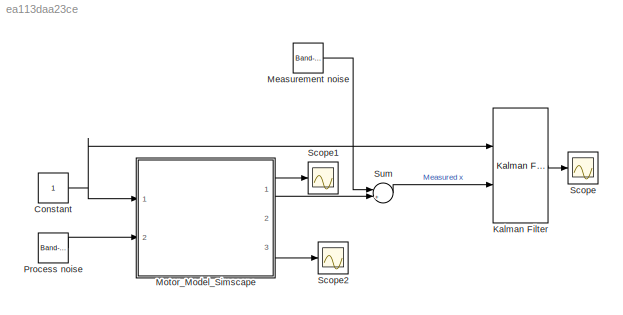
MODEL slx_ea113daa23ce
KIND model
CONFIG AbsTol = auto
CONFIG EnableMultiTasking = off
CONFIG FixedStep = auto
CONFIG MaxStep = auto
CONFIG MinStep = auto
CONFIG RelTol = 1e-3
CONFIG SampleTimeConstraint = Unconstrained
CONFIG Solver = ode15s
CONFIG SolverName = ode15s
CONFIG StartTime = 0.0
CONFIG StopTime = 10.0
BLOCK [Constant] Constant
BLOCK [Reference] Kalman Filter  REF=ctrlSharedLib/Kalman Filter
  Ports = [2, 1]
  SourceBlock = ctrlSharedLib/Kalman Filter
  SourceProductBaseCode = CT
  SourceProductName = Control System Toolbox
  SourceType = ctrlKalmanFilter
BLOCK [Reference] Measurement noise  REF=simulink/Sources/Band-Limited
White Noise
  Ports = [0, 1]
  SourceBlock = simulink/Sources/Band-Limited\nWhite Noise
  SourceProductBaseCode = SL
  SourceProductName = Simulink
  SourceType = Band-Limited White Noise.
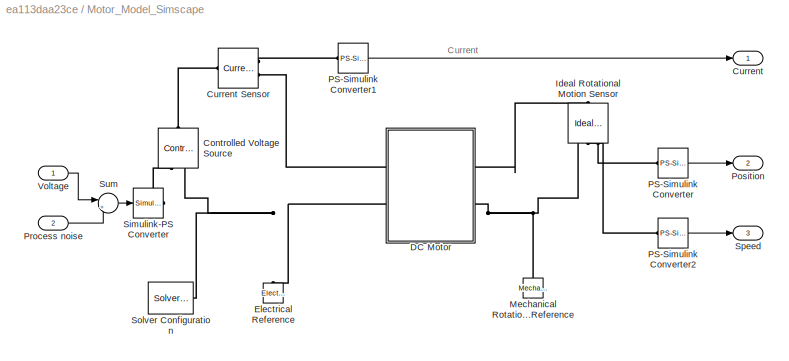
BLOCK [SubSystem] Motor_Model_Simscape
  Ports = [2, 3]
  RequestExecContextInheritance = off
BLOCK [Reference] Motor_Model_Simscape/Controlled Voltage Source  REF=fl_lib/Electrical/Electrical Sources/Controlled Voltage
Source
  Ports = [0, 0, 0, 0, 0, 1, 2]
  SourceBlock = fl_lib/Electrical/Electrical Sources/Controlled Voltage\nSource
  SourceProductBaseCode = SS
  SourceProductName = Simscape
  SourceType = Controlled Voltage\nSource
BLOCK [Outport] Motor_Model_Simscape/Current
  IconDisplay = Port number
BLOCK [Reference] Motor_Model_Simscape/Current Sensor  REF=fl_lib/Electrical/Electrical Sensors/Current Sensor
  Ports = [0, 0, 0, 0, 0, 1, 2]
  SourceBlock = fl_lib/Electrical/Electrical Sensors/Current Sensor
  SourceProductBaseCode = SS
  SourceProductName = Simscape
  SourceType = Current Sensor
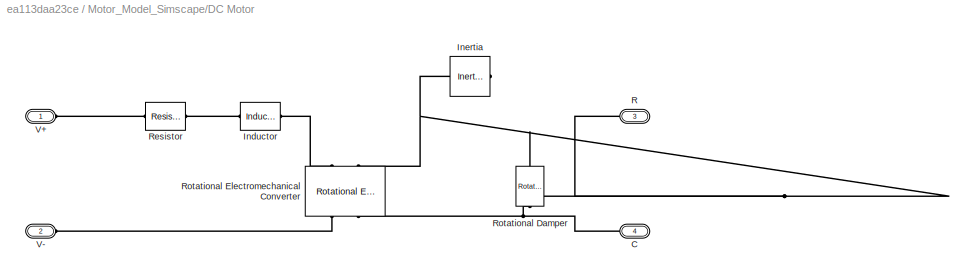
BLOCK [SubSystem] Motor_Model_Simscape/DC Motor
  Ports = [0, 0, 0, 0, 0, 2, 2]
  RequestExecContextInheritance = off
BLOCK [PMIOPort] Motor_Model_Simscape/DC Motor/C
  Port = 4
  Side = Right
BLOCK [Reference] Motor_Model_Simscape/DC Motor/Inductor  REF=fl_lib/Electrical/Electrical Elements/Inductor
  Ports = [0, 0, 0, 0, 0, 1, 1]
  SourceBlock = fl_lib/Electrical/Electrical Elements/Inductor
  SourceProductBaseCode = SS
  SourceProductName = Simscape
  SourceType = Inductor
BLOCK [Reference] Motor_Model_Simscape/DC Motor/Inertia  REF=fl_lib/Mechanical/Rotational Elements/Inertia
  Ports = [0, 0, 0, 0, 0, 1]
  SourceBlock = fl_lib/Mechanical/Rotational Elements/Inertia
  SourceProductBaseCode = SS
  SourceProductName = Simscape
  SourceType = Inertia
BLOCK [PMIOPort] Motor_Model_Simscape/DC Motor/R
  Port = 3
  Side = Right
BLOCK [Reference] Motor_Model_Simscape/DC Motor/Resistor  REF=fl_lib/Electrical/Electrical Elements/Resistor
  Ports = [0, 0, 0, 0, 0, 1, 1]
  SourceBlock = fl_lib/Electrical/Electrical Elements/Resistor
  SourceProductBaseCode = SS
  SourceProductName = Simscape
  SourceType = Resistor
BLOCK [Reference] Motor_Model_Simscape/DC Motor/Rotational Damper  REF=fl_lib/Mechanical/Rotational Elements/Rotational Damper
  Ports = [0, 0, 0, 0, 0, 1, 1]
  SourceBlock = fl_lib/Mechanical/Rotational Elements/Rotational Damper
  SourceProductBaseCode = SS
  SourceProductName = Simscape
  SourceType = Rotational Damper
BLOCK [Reference] Motor_Model_Simscape/DC Motor/Rotational Electromechanical Converter  REF=fl_lib/Electrical/Electrical Elements/Rotational
Electromechanical
Converter
  Ports = [0, 0, 0, 0, 0, 2, 2]
  SourceBlock = fl_lib/Electrical/Electrical Elements/Rotational\nElectromechanical\nConverter
  SourceProductBaseCode = SS
  SourceProductName = Simscape
  SourceType = Rotational\nElectromechanical\nConverter
BLOCK [PMIOPort] Motor_Model_Simscape/DC Motor/V+
  Side = Left
BLOCK [PMIOPort] Motor_Model_Simscape/DC Motor/V-
  Port = 2
  Side = Left
BLOCK [Reference] Motor_Model_Simscape/Electrical Reference  REF=fl_lib/Electrical/Electrical Elements/Electrical Reference
  Ports = [0, 0, 0, 0, 0, 1]
  SourceBlock = fl_lib/Electrical/Electrical Elements/Electrical Reference
  SourceProductBaseCode = SS
  SourceProductName = Simscape
  SourceType = Electrical Reference
BLOCK [Reference] Motor_Model_Simscape/Ideal Rotational Motion Sensor  REF=fl_lib/Mechanical/Mechanical Sensors/Ideal Rotational
Motion Sensor
  Ports = [0, 0, 0, 0, 0, 1, 3]
  SourceBlock = fl_lib/Mechanical/Mechanical Sensors/Ideal Rotational\nMotion Sensor
  SourceProductBaseCode = SS
  SourceProductName = Simscape
  SourceType = Ideal Rotational\nMotion Sensor
BLOCK [Reference] Motor_Model_Simscape/Mechanical Rotational Reference  REF=fl_lib/Mechanical/Rotational Elements/Mechanical
Rotational Reference
  Ports = [0, 0, 0, 0, 0, 1]
  SourceBlock = fl_lib/Mechanical/Rotational Elements/Mechanical\nRotational Reference
  SourceProductBaseCode = SS
  SourceProductName = Simscape
  SourceType = Mechanical\nRotational Reference
BLOCK [Reference] Motor_Model_Simscape/PS-Simulink Converter  REF=nesl_utility/PS-Simulink
Converter
  Ports = [0, 1, 0, 0, 0, 1]
  SourceBlock = nesl_utility/PS-Simulink\nConverter
  SourceProductBaseCode = SS
  SourceProductName = Simscape
  SourceType = PS-Simulink\nConverter
BLOCK [Reference] Motor_Model_Simscape/PS-Simulink Converter1  REF=nesl_utility/PS-Simulink
Converter
  Ports = [0, 1, 0, 0, 0, 1]
  SourceBlock = nesl_utility/PS-Simulink\nConverter
  SourceProductBaseCode = SS
  SourceProductName = Simscape
  SourceType = PS-Simulink\nConverter
BLOCK [Reference] Motor_Model_Simscape/PS-Simulink Converter2  REF=nesl_utility/PS-Simulink
Converter
  Ports = [0, 1, 0, 0, 0, 1]
  SourceBlock = nesl_utility/PS-Simulink\nConverter
  SourceProductBaseCode = SS
  SourceProductName = Simscape
  SourceType = PS-Simulink\nConverter
BLOCK [Outport] Motor_Model_Simscape/Position
  IconDisplay = Port number
  Port = 2
BLOCK [Inport] Motor_Model_Simscape/Process noise
  IconDisplay = Port number
  Port = 2
BLOCK [Reference] Motor_Model_Simscape/Simulink-PS Converter  REF=nesl_utility/Simulink-PS
Converter
  Ports = [1, 0, 0, 0, 0, 0, 1]
  SourceBlock = nesl_utility/Simulink-PS\nConverter
  SourceProductBaseCode = SS
  SourceProductName = Simscape
  SourceType = Simulink-PS\nConverter
BLOCK [Reference] Motor_Model_Simscape/Solver Configuration  REF=nesl_utility/Solver
Configuration
  Ports = [0, 0, 0, 0, 0, 0, 1]
  SourceBlock = nesl_utility/Solver\nConfiguration
  SourceProductBaseCode = SS
  SourceProductName = Simscape
  SourceType = Solver\nConfiguration
BLOCK [Outport] Motor_Model_Simscape/Speed
  IconDisplay = Port number
  Port = 3
BLOCK [Sum] Motor_Model_Simscape/Sum
  IconShape = round
  InputSameDT = off
  Inputs = |++
  OutDataTypeStr = Inherit: Inherit via internal rule
  Ports = [2, 1]
  SaturateOnIntegerOverflow = off
BLOCK [Inport] Motor_Model_Simscape/Voltage
  IconDisplay = Port number
BLOCK [Reference] Process noise  REF=simulink/Sources/Band-Limited
White Noise
  Ports = [0, 1]
  SourceBlock = simulink/Sources/Band-Limited\nWhite Noise
  SourceProductBaseCode = SL
  SourceProductName = Simulink
  SourceType = Band-Limited White Noise.
BLOCK [Scope] Scope
  Floating = off
  NumInputPorts = 1
  Ports = [1]
  ScopeSpecificationString = Simulink.scopes.TimeScopeBlockCfg('CurrentConfiguration', extmgr.ConfigurationSet(extmgr.Configuration('Core','General UI',true),extmgr.Configuration('Core','Source UI',true),extmgr.Configuration('Sources','WiredSimulink',true,'DataLoggingVariableName','ScopeData2'),extmgr.Configuration('Visuals','Time Domain',true,'SerializedDisplays',{struct('MinYLimReal','-2.86725','MaxYLimReal','25.79319','YLa...<+1439ch>
BLOCK [Scope] Scope1
  Floating = off
  NumInputPorts = 1
  Ports = [1]
  ScopeSpecificationString = Simulink.scopes.TimeScopeBlockCfg('CurrentConfiguration', extmgr.ConfigurationSet(extmgr.Configuration('Core','General UI',true),extmgr.Configuration('Core','Source UI',true),extmgr.Configuration('Sources','WiredSimulink',true,'DataLoggingVariableName','ScopeData1'),extmgr.Configuration('Visuals','Time Domain',true,'SerializedDisplays',{struct('MinYLimReal','-0.03274','MaxYLimReal','0.1542','YLabe...<+1419ch>
BLOCK [Scope] Scope2
  Floating = off
  NumInputPorts = 1
  Ports = [1]
  ScopeSpecificationString = Simulink.scopes.TimeScopeBlockCfg('CurrentConfiguration', extmgr.ConfigurationSet(extmgr.Configuration('Core','General UI',true),extmgr.Configuration('Core','Source UI',true),extmgr.Configuration('Sources','WiredSimulink',true,'DataLoggingVariableName','ScopeData1'),extmgr.Configuration('Visuals','Time Domain',true,'SerializedDisplays',{struct('MinYLimReal','-2.93125','MaxYLimReal','26.38128','YLa...<+1385ch>
BLOCK [Sum] Sum
  IconShape = round
  InputSameDT = off
  Inputs = |++
  OutDataTypeStr = Inherit: Inherit via internal rule
  Ports = [2, 1]
  SaturateOnIntegerOverflow = off
ANNOTATION Motor_Model_Simscape: Current
NET Constant:1 -> Kalman Filter:1, Motor_Model_Simscape:1
LINE Kalman Filter:1 -> Scope:1
LINE Measurement noise:1 -> Sum:1
LINE Motor_Model_Simscape/PS-Simulink Converter1:1 -> Motor_Model_Simscape/Current:1
LINE Motor_Model_Simscape/PS-Simulink Converter2:1 -> Motor_Model_Simscape/Speed:1
LINE Motor_Model_Simscape/PS-Simulink Converter:1 -> Motor_Model_Simscape/Position:1
LINE Motor_Model_Simscape/Process noise:1 -> Motor_Model_Simscape/Sum:2
LINE Motor_Model_Simscape/Sum:1 -> Motor_Model_Simscape/Simulink-PS Converter:1
LINE Motor_Model_Simscape/Voltage:1 -> Motor_Model_Simscape/Sum:1
LINE Motor_Model_Simscape:1 -> Scope1:1
LINE Motor_Model_Simscape:2 -> Sum:2
LINE Motor_Model_Simscape:3 -> Scope2:1
LINE Process noise:1 -> Motor_Model_Simscape:2
LINE Sum:1 -> Kalman Filter:2
PLINE Motor_Model_Simscape/Controlled Voltage Source:LConn1 -- Motor_Model_Simscape/Current Sensor:LConn1
PLINE Motor_Model_Simscape/Controlled Voltage Source:RConn1 -- Motor_Model_Simscape/Simulink-PS Converter:RConn1
PNET net1: Motor_Model_Simscape/Controlled Voltage Source:RConn2 -- Motor_Model_Simscape/DC Motor:LConn2 -- Motor_Model_Simscape/Electrical Reference:LConn1 -- Motor_Model_Simscape/Solver Configuration:RConn1
PLINE Motor_Model_Simscape/Current Sensor:RConn1 -- Motor_Model_Simscape/PS-Simulink Converter1:LConn1
PLINE Motor_Model_Simscape/Current Sensor:RConn2 -- Motor_Model_Simscape/DC Motor:LConn1
PNET net2: Motor_Model_Simscape/DC Motor/C:RConn1 -- Motor_Model_Simscape/DC Motor/Rotational Damper:LConn1 -- Motor_Model_Simscape/DC Motor/Rotational Electromechanical Converter:RConn2
PLINE Motor_Model_Simscape/DC Motor/Inductor:LConn1 -- Motor_Model_Simscape/DC Motor/Resistor:RConn1
PLINE Motor_Model_Simscape/DC Motor/Inductor:RConn1 -- Motor_Model_Simscape/DC Motor/Rotational Electromechanical Converter:LConn1
PNET net3: Motor_Model_Simscape/DC Motor/Inertia:LConn1 -- Motor_Model_Simscape/DC Motor/R:RConn1 -- Motor_Model_Simscape/DC Motor/Rotational Damper:RConn1 -- Motor_Model_Simscape/DC Motor/Rotational Electromechanical Converter:LConn2
PLINE Motor_Model_Simscape/DC Motor/Resistor:LConn1 -- Motor_Model_Simscape/DC Motor/V+:RConn1
PLINE Motor_Model_Simscape/DC Motor/Rotational Electromechanical Converter:RConn1 -- Motor_Model_Simscape/DC Motor/V-:RConn1
PLINE Motor_Model_Simscape/DC Motor:RConn1 -- Motor_Model_Simscape/Ideal Rotational Motion Sensor:LConn1
PNET net4: Motor_Model_Simscape/DC Motor:RConn2 -- Motor_Model_Simscape/Ideal Rotational Motion Sensor:RConn1 -- Motor_Model_Simscape/Mechanical Rotational Reference:LConn1
PLINE Motor_Model_Simscape/Ideal Rotational Motion Sensor:RConn2 -- Motor_Model_Simscape/PS-Simulink Converter2:LConn1
PLINE Motor_Model_Simscape/Ideal Rotational Motion Sensor:RConn3 -- Motor_Model_Simscape/PS-Simulink Converter:LConn1
note: NET lines group one-source signal fan-out (src -> all destinations, sorted); 1:1 wires keep LINE; PNET lines group multi-terminal physical nets as a canonical sorted terminal list (undirected conserving connections); 2-terminal nets keep the pairwise PLINE form
